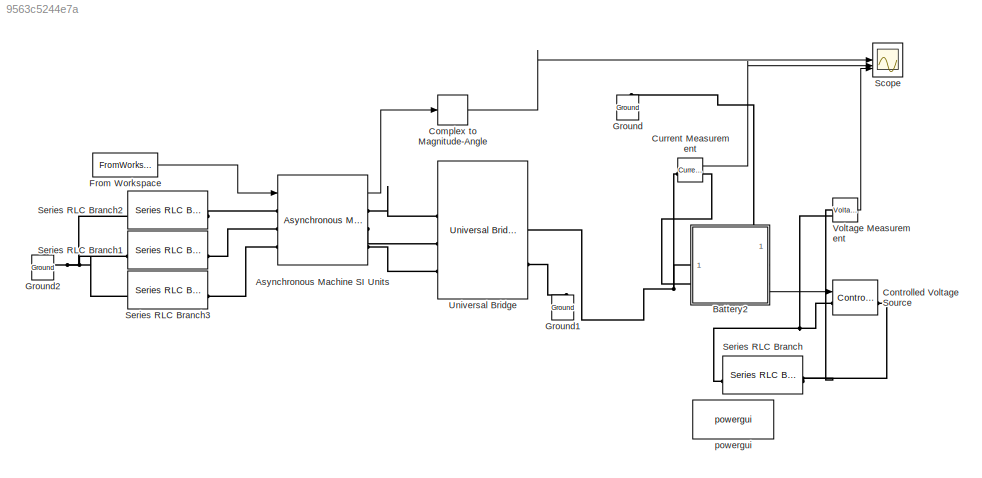
MODEL slx_9563c5244e7a
KIND model
CONFIG AbsTol = auto
CONFIG EnableMultiTasking = off
CONFIG FixedStep = auto
CONFIG MaxStep = auto
CONFIG MinStep = auto
CONFIG RelTol = 1e-3
CONFIG SampleTimeConstraint = Unconstrained
CONFIG SolverName = ode4
CONFIG StartTime = 0.0
CONFIG StopTime = 10.0
BLOCK [Reference] Asynchronous Machine SI Units  REF=spsAsynchronousMachineSIUnitsLib/Asynchronous Machine
SI Units
  LibrarySourceBlock = sps_lib/Electrical Machines/Asynchronous Machine\nSI Units
  SourceBlock = spsAsynchronousMachineSIUnitsLib/Asynchronous Machine\nSI Units
  SourceType = Asynchronous Machine
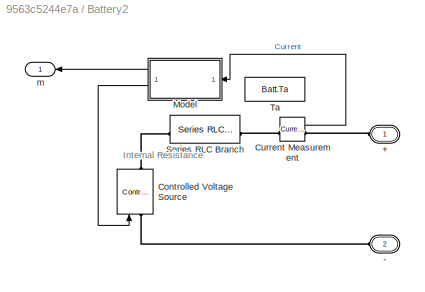
BLOCK [SubSystem] Battery2
  AncestorBlock = sps_lib/Sources/Battery
  CloseFcn = sps_rtmsupport('CloseFcn',gcbh);
  CopyFcn = sps_rtmsupport('CopyFcn',gcbh);
  DeleteFcn = sps_rtmsupport('DeleteFcn',gcbh);
  DialogController = POWERSYS.PowerSysDialog
  InitFcn = BatteryCback(gcb,1)
  LibrarySourceBlock = sps_lib/Sources/Battery
  LoadFcn = sps_rtmsupport('LoadFcn',gcbh); BatteryLoadFcn(gcb)
  ModelCloseFcn = sps_rtmsupport('ModelCloseFcn',gcbh);
  NameChangeFcn = sps_rtmsupport('NameChangeFcn',gcbh);
  NameLocation = top
  OpenFcn = sps_rtmsupport('OpenFcn',gcbh, [1,2,3,4,9,18]);
  PostSaveFcn = sps_rtmsupport('PostSaveFcn',gcbh);
  PreCopyFcn = sps_rtmsupport('PreCopyFcn',gcbh);
  PreDeleteFcn = sps_rtmsupport('PreDeleteFcn',gcbh);
  PreSaveFcn = sps_rtmsupport('PreSaveFcn',gcbh);
  StartFcn = sps_rtmsupport('StartFcn',gcbh);
  StopFcn = sps_rtmsupport('StopFcn',gcbh);
  UndoDeleteFcn = sps_rtmsupport('UndoDeleteFcn',gcbh);
BLOCK [PMIOPort] Battery2/+
  NameLocation = top
  Side = Left
  Tag = PMCPort
BLOCK [PMIOPort] Battery2/-
  NameLocation = top
  Port = 2
  Side = Left
  Tag = PMCPort
BLOCK [Reference] Battery2/Controlled Voltage Source  REF=spsControlledVoltageSourceLib/Controlled Voltage Source
  NameLocation = right
  SourceBlock = spsControlledVoltageSourceLib/Controlled Voltage Source
  SourceType = Controlled Voltage Source
BLOCK [Reference] Battery2/Current Measurement  REF=spsCurrentMeasurementLib/Current Measurement
  SourceBlock = spsCurrentMeasurementLib/Current Measurement
  SourceType = Current Measurement
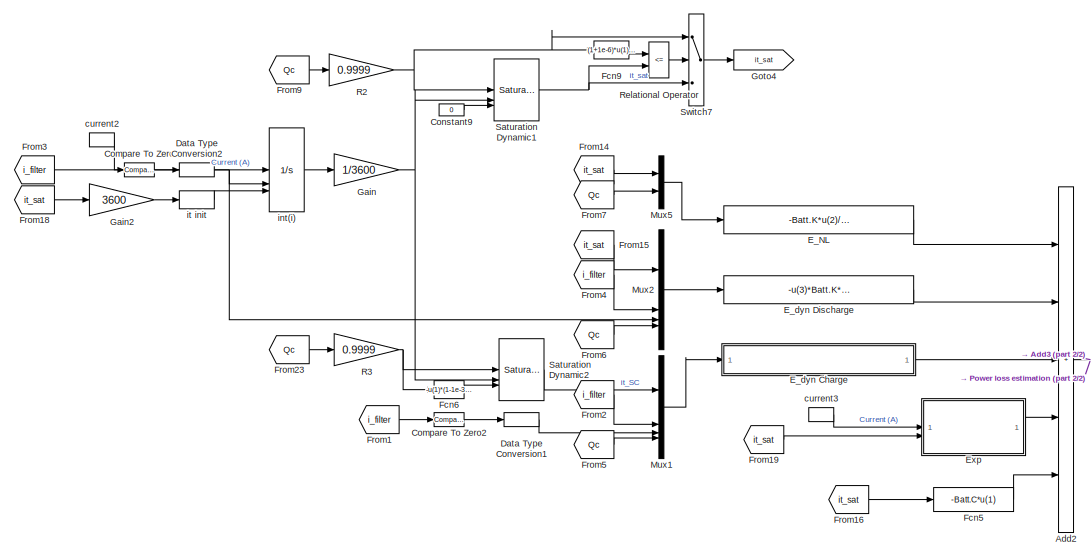
[diagram: Battery2/Model - part 1/2, left side, full height]
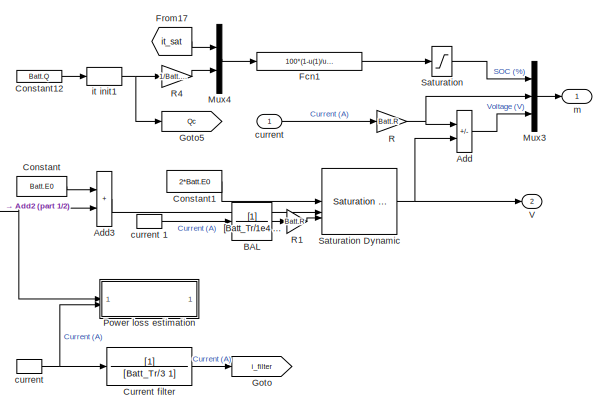
[diagram: Battery2/Model - part 2/2, middle right region]
BLOCK [SubSystem] Battery2/Model
  AncestorBlock = sps_lib/Sources/Battery/Model
  LibrarySourceBlock = sps_lib/Sources/Battery/Model
  NameLocation = top
BLOCK [Sum] Battery2/Model/Add
  IconShape = rectangular
  Inputs = -+
BLOCK [Sum] Battery2/Model/Add2
  IconShape = rectangular
  Inputs = +++++
BLOCK [Sum] Battery2/Model/Add3
  IconShape = rectangular
BLOCK [TransferFcn] Battery2/Model/BAL
  Denominator = [Batt_Tr/1e4 1]
BLOCK [Reference] Battery2/Model/Compare To Zero  REF=simulink/Logic and Bit
Operations/Compare
To Zero
  SourceBlock = simulink/Logic and Bit\nOperations/Compare\nTo Zero
  SourceType = Compare To Zero
BLOCK [Reference] Battery2/Model/Compare To Zero2  REF=simulink/Logic and Bit
Operations/Compare
To Zero
  SourceBlock = simulink/Logic and Bit\nOperations/Compare\nTo Zero
  SourceType = Compare To Zero
BLOCK [Constant] Battery2/Model/Constant
  NameLocation = top
  Value = Batt.E0
BLOCK [Constant] Battery2/Model/Constant1
  NameLocation = top
  Value = 2*Batt.E0
BLOCK [Constant] Battery2/Model/Constant12
  Value = Batt.Q
BLOCK [Constant] Battery2/Model/Constant9
  Value = 0
BLOCK [TransferFcn] Battery2/Model/Current filter
  Denominator = [Batt_Tr/3 1]
BLOCK [DataTypeConversion] Battery2/Model/Data Type Conversion1
  RndMeth = Floor
  SaturateOnIntegerOverflow = off
BLOCK [DataTypeConversion] Battery2/Model/Data Type Conversion2
  RndMeth = Floor
  SaturateOnIntegerOverflow = off
BLOCK [Fcn] Battery2/Model/E_NL
  Expr = -Batt.K*u(2)/(u(2)-u(1))*u(1)
  NameLocation = top
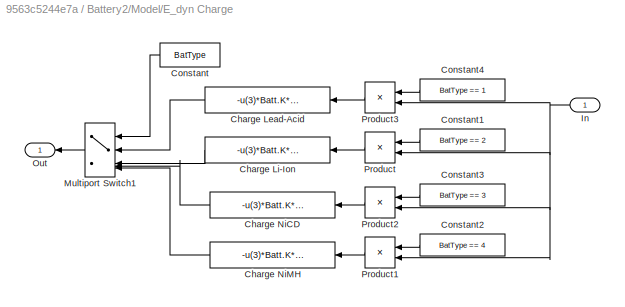
BLOCK [SubSystem] Battery2/Model/E_dyn Charge
  NameLocation = top
BLOCK [Fcn] Battery2/Model/E_dyn Charge/Charge Lead-Acid
  Expr = -u(3)*Batt.K*u(2)*(Batt.Q/(u(1)+Batt.Q*Batt.kc))
BLOCK [Fcn] Battery2/Model/E_dyn Charge/Charge Li-Ion
  Expr = -u(3)*Batt.K*u(2)*u(4)/(u(1)+u(4)*Batt.kc)
BLOCK [Fcn] Battery2/Model/E_dyn Charge/Charge NiCD
  Expr = -u(3)*Batt.K*u(2)*(Batt.Q/(abs(u(1))+Batt.Q*Batt.kc))
BLOCK [Fcn] Battery2/Model/E_dyn Charge/Charge NiMH
  Expr = -u(3)*Batt.K*u(2)*(Batt.Q/(abs(u(1))+Batt.Q*Batt.kc))
BLOCK [Constant] Battery2/Model/E_dyn Charge/Constant
  NameLocation = top
  Value = BatType
BLOCK [Constant] Battery2/Model/E_dyn Charge/Constant1
  NameLocation = top
  OutDataTypeStr = double
  Value = BatType == 2
BLOCK [Constant] Battery2/Model/E_dyn Charge/Constant2
  NameLocation = top
  OutDataTypeStr = double
  Value = BatType == 4
BLOCK [Constant] Battery2/Model/E_dyn Charge/Constant3
  NameLocation = top
  OutDataTypeStr = double
  Value = BatType == 3
BLOCK [Constant] Battery2/Model/E_dyn Charge/Constant4
  NameLocation = top
  OutDataTypeStr = double
  Value = BatType == 1
BLOCK [Inport] Battery2/Model/E_dyn Charge/In
BLOCK [MultiPortSwitch] Battery2/Model/E_dyn Charge/Multiport Switch1
  InputSameDT = off
  Inputs = 4
  NameLocation = top
  SaturateOnIntegerOverflow = off
BLOCK [Outport] Battery2/Model/E_dyn Charge/Out
  VectorParamsAs1DForOutWhenUnconnected = off
BLOCK [Product] Battery2/Model/E_dyn Charge/Product
  NameLocation = top
  RndMeth = Zero
BLOCK [Product] Battery2/Model/E_dyn Charge/Product1
  NameLocation = top
  RndMeth = Zero
BLOCK [Product] Battery2/Model/E_dyn Charge/Product2
  NameLocation = top
  RndMeth = Zero
BLOCK [Product] Battery2/Model/E_dyn Charge/Product3
  NameLocation = top
  RndMeth = Zero
BLOCK [Fcn] Battery2/Model/E_dyn Discharge
  Expr = -u(3)*Batt.K*u(2)*u(4)/(u(4)-u(1))
  NameLocation = top
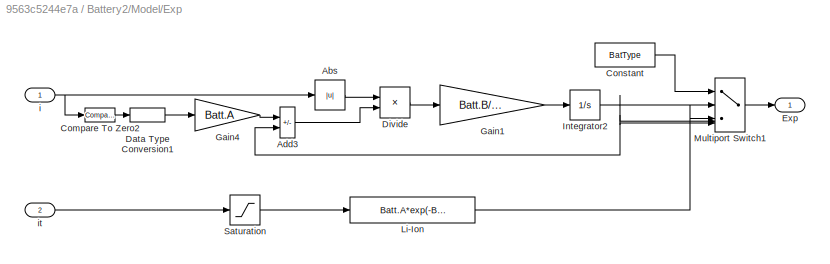
BLOCK [SubSystem] Battery2/Model/Exp
  NameLocation = top
BLOCK [Abs] Battery2/Model/Exp/Abs
  SaturateOnIntegerOverflow = off
BLOCK [Sum] Battery2/Model/Exp/Add3
  IconShape = rectangular
  Inputs = +-
BLOCK [Reference] Battery2/Model/Exp/Compare To Zero2  REF=simulink/Logic and Bit
Operations/Compare
To Zero
  SourceBlock = simulink/Logic and Bit\nOperations/Compare\nTo Zero
  SourceType = Compare To Zero
BLOCK [Constant] Battery2/Model/Exp/Constant
  Value = BatType
BLOCK [DataTypeConversion] Battery2/Model/Exp/Data Type Conversion1
  RndMeth = Floor
  SaturateOnIntegerOverflow = off
BLOCK [Product] Battery2/Model/Exp/Divide
  Inputs = **
BLOCK [Outport] Battery2/Model/Exp/Exp
  NameLocation = top
  VectorParamsAs1DForOutWhenUnconnected = off
BLOCK [Gain] Battery2/Model/Exp/Gain1
  Gain = Batt.B/3600
  NameLocation = top
BLOCK [Gain] Battery2/Model/Exp/Gain4
  Gain = Batt.A
  NameLocation = top
BLOCK [Integrator] Battery2/Model/Exp/Integrator2
  InitialCondition = Batt.A*exp(-Batt.B*(1-SOC/100)*Batt.Q)
BLOCK [Fcn] Battery2/Model/Exp/Li-Ion
  Expr = Batt.A*exp(-Batt.B*u(1))
  NameLocation = top
BLOCK [MultiPortSwitch] Battery2/Model/Exp/Multiport Switch1
  InputSameDT = off
  Inputs = 4
  SaturateOnIntegerOverflow = off
BLOCK [Saturate] Battery2/Model/Exp/Saturation
  LowerLimit = -inf
  UpperLimit = Batt.Qmax*(1/Batt.lambda)
BLOCK [Inport] Battery2/Model/Exp/i
BLOCK [Inport] Battery2/Model/Exp/it
  Port = 2
BLOCK [Fcn] Battery2/Model/Fcn1
  Expr = 100*(1-u(1)/u(2))
BLOCK [Fcn] Battery2/Model/Fcn5
  Expr = -Batt.C*u(1)
BLOCK [Fcn] Battery2/Model/Fcn6
  Expr = -u(1)*(1-1e-3)*Batt.kcsat*0.9999
BLOCK [Fcn] Battery2/Model/Fcn9
  Expr = (1+1e-6)*u(1)*(1/Batt.lambda)/0.9999
BLOCK [From] Battery2/Model/From1
  GotoTag = i_filter
BLOCK [From] Battery2/Model/From14
  GotoTag = it_sat
BLOCK [From] Battery2/Model/From15
  GotoTag = it_sat
BLOCK [From] Battery2/Model/From16
  GotoTag = it_sat
BLOCK [From] Battery2/Model/From17
  GotoTag = it_sat
BLOCK [From] Battery2/Model/From18
  GotoTag = it_sat
BLOCK [From] Battery2/Model/From19
  GotoTag = it_sat
  NameLocation = top
BLOCK [From] Battery2/Model/From2
  GotoTag = i_filter
BLOCK [From] Battery2/Model/From23
  GotoTag = Qc
BLOCK [From] Battery2/Model/From3
  GotoTag = i_filter
BLOCK [From] Battery2/Model/From4
  GotoTag = i_filter
BLOCK [From] Battery2/Model/From5
  GotoTag = Qc
BLOCK [From] Battery2/Model/From6
  GotoTag = Qc
BLOCK [From] Battery2/Model/From7
  GotoTag = Qc
BLOCK [From] Battery2/Model/From9
  GotoTag = Qc
BLOCK [Gain] Battery2/Model/Gain
  Gain = 1/3600
BLOCK [Gain] Battery2/Model/Gain2
  Gain = 3600
  NameLocation = top
BLOCK [Goto] Battery2/Model/Goto
  GotoTag = i_filter
BLOCK [Goto] Battery2/Model/Goto4
  GotoTag = it_sat
BLOCK [Goto] Battery2/Model/Goto5
  GotoTag = Qc
BLOCK [Mux] Battery2/Model/Mux1
  DisplayOption = bar
BLOCK [Mux] Battery2/Model/Mux2
  DisplayOption = bar
BLOCK [Mux] Battery2/Model/Mux3
  DisplayOption = bar
  Inputs = 3
BLOCK [Mux] Battery2/Model/Mux4
  DisplayOption = bar
  Inputs = 2
BLOCK [Mux] Battery2/Model/Mux5
  DisplayOption = bar
  Inputs = 2
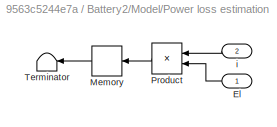
BLOCK [SubSystem] Battery2/Model/Power loss estimation
BLOCK [Inport] Battery2/Model/Power loss estimation/El
BLOCK [Memory] Battery2/Model/Power loss estimation/Memory
  NameLocation = top
BLOCK [Product] Battery2/Model/Power loss estimation/Product
  NameLocation = top
BLOCK [Terminator] Battery2/Model/Power loss estimation/Terminator
  NameLocation = top
BLOCK [Inport] Battery2/Model/Power loss estimation/i
  Port = 2
BLOCK [Gain] Battery2/Model/R
  Gain = Batt.R
  NameLocation = top
BLOCK [Gain] Battery2/Model/R1
  Gain = Batt.R
  NameLocation = top
BLOCK [Gain] Battery2/Model/R2
  Gain = 0.9999
  NameLocation = top
BLOCK [Gain] Battery2/Model/R3
  Gain = 0.9999
  NameLocation = top
BLOCK [Gain] Battery2/Model/R4
  Gain = 1/Batt.lambda
  NameLocation = top
BLOCK [RelationalOperator] Battery2/Model/Relational Operator
  InputSameDT = off
  Operator = <=
  RndMeth = Simplest
BLOCK [Saturate] Battery2/Model/Saturation
  LowerLimit = 0
  UpperLimit = 100
BLOCK [Reference] Battery2/Model/Saturation Dynamic  REF=simulink/Discontinuities/Saturation
Dynamic
  SourceBlock = simulink/Discontinuities/Saturation\nDynamic
  SourceType = Saturation Dynamic
BLOCK [Reference] Battery2/Model/Saturation Dynamic1  REF=simulink/Discontinuities/Saturation
Dynamic
  SourceBlock = simulink/Discontinuities/Saturation\nDynamic
  SourceType = Saturation Dynamic
BLOCK [Reference] Battery2/Model/Saturation Dynamic2  REF=simulink/Discontinuities/Saturation
Dynamic
  SourceBlock = simulink/Discontinuities/Saturation\nDynamic
  SourceType = Saturation Dynamic
BLOCK [Switch] Battery2/Model/Switch7
  Criteria = u2 > Threshold
  InputSameDT = off
  SaturateOnIntegerOverflow = off
BLOCK [Outport] Battery2/Model/V
  Port = 2
  VectorParamsAs1DForOutWhenUnconnected = off
BLOCK [Inport] Battery2/Model/current
BLOCK [InportShadow] Battery2/Model/current 
  NameLocation = top
BLOCK [InportShadow] Battery2/Model/current 1
  NameLocation = top
BLOCK [InportShadow] Battery2/Model/current2
  NameLocation = top
BLOCK [InportShadow] Battery2/Model/current3
BLOCK [Integrator] Battery2/Model/int(i)
  ExternalReset = rising
  InitialCondition = (1-SOC/100)*Q*3600
  InitialConditionSource = external
  LimitOutput = on
  UpperSaturationLimit = Batt.Qmax*3600
BLOCK [Memory] Battery2/Model/it init
  InitialCondition = (1-SOC/100)*Batt.Q*(1/Batt.lambda)*3600
BLOCK [Memory] Battery2/Model/it init1
  InitialCondition = Batt.Q
  NameLocation = top
BLOCK [Outport] Battery2/Model/m
  PortDimensions = 3
  VectorParamsAs1DForOutWhenUnconnected = off
BLOCK [Reference] Battery2/Series RLC Branch  REF=spsSeriesRLCBranchLib/Series RLC Branch
  SourceBlock = spsSeriesRLCBranchLib/Series RLC Branch
  SourceType = Series RLC Branch
BLOCK [Constant] Battery2/Ta
  Value = Batt.Ta
BLOCK [Outport] Battery2/m
  NameLocation = top
  VectorParamsAs1DForOutWhenUnconnected = off
BLOCK [ComplexToMagnitudeAngle] Complex to Magnitude-Angle
  Output = Magnitude
BLOCK [Reference] Controlled Voltage Source  REF=spsControlledVoltageSourceLib/Controlled Voltage Source
  LibrarySourceBlock = sps_lib/Sources/Controlled Voltage Source
  NameLocation = left
  SourceBlock = spsControlledVoltageSourceLib/Controlled Voltage Source
  SourceType = Controlled Voltage Source
BLOCK [Reference] Current Measurement  REF=spsCurrentMeasurementLib/Current Measurement
  LibrarySourceBlock = sps_lib/Sensors and Measurements/Current Measurement
  SourceBlock = spsCurrentMeasurementLib/Current Measurement
  SourceType = Current Measurement
  UserDataPersistent = on
BLOCK [FromWorkspace] From Workspace
  VariableName = fixed_data
BLOCK [Reference] Ground  REF=spsGroundLib/Ground
  LibrarySourceBlock = sps_lib/Utilities/Ground
  NameLocation = right
  SourceBlock = spsGroundLib/Ground
  SourceType = Ground
BLOCK [Reference] Ground1  REF=spsGroundLib/Ground
  LibrarySourceBlock = sps_lib/Utilities/Ground
  NameLocation = right
  SourceBlock = spsGroundLib/Ground
  SourceType = Ground
BLOCK [Reference] Ground2  REF=spsGroundLib/Ground
  LibrarySourceBlock = sps_lib/Utilities/Ground
  NameLocation = right
  SourceBlock = spsGroundLib/Ground
  SourceType = Ground
BLOCK [Scope] Scope
  Floating = off
  NumInputPorts = 3
  ScopeSpecificationString = Simulink.scopes.TimeScopeBlockCfg('CurrentConfiguration', extmgr.ConfigurationSet(extmgr.Configuration('Core','General UI',true),extmgr.Configuration('Core','Source UI',true),extmgr.Configuration('Sources','WiredSimulink',true),extmgr.Configuration('Visuals','Time Domain',true),extmgr.Configuration('Tools','Plot Navigation',true),extmgr.Configuration('Tools','Measurements',true)),'Version','2024a'...<+1ch>
BLOCK [Reference] Series RLC Branch  REF=spsSeriesRLCBranchLib/Series RLC Branch
  LibrarySourceBlock = sps_lib/Passives/Series RLC Branch
  NameLocation = top
  SourceBlock = spsSeriesRLCBranchLib/Series RLC Branch
  SourceType = Series RLC Branch
BLOCK [Reference] Series RLC Branch1  REF=spsSeriesRLCBranchLib/Series RLC Branch
  LibrarySourceBlock = sps_lib/Passives/Series RLC Branch
  SourceBlock = spsSeriesRLCBranchLib/Series RLC Branch
  SourceType = Series RLC Branch
BLOCK [Reference] Series RLC Branch2  REF=spsSeriesRLCBranchLib/Series RLC Branch
  LibrarySourceBlock = sps_lib/Passives/Series RLC Branch
  SourceBlock = spsSeriesRLCBranchLib/Series RLC Branch
  SourceType = Series RLC Branch
BLOCK [Reference] Series RLC Branch3  REF=spsSeriesRLCBranchLib/Series RLC Branch
  LibrarySourceBlock = sps_lib/Passives/Series RLC Branch
  SourceBlock = spsSeriesRLCBranchLib/Series RLC Branch
  SourceType = Series RLC Branch
BLOCK [Reference] Universal Bridge  REF=spsUniversalBridgeLib/Universal Bridge
  LibrarySourceBlock = sps_lib/Power Electronics/Universal Bridge
  SourceBlock = spsUniversalBridgeLib/Universal Bridge
  SourceType = Universal Bridge
BLOCK [Reference] Voltage Measurement  REF=spsVoltageMeasurementLib/Voltage Measurement
  LibrarySourceBlock = sps_lib/Sensors and Measurements/Voltage Measurement
  SourceBlock = spsVoltageMeasurementLib/Voltage Measurement
  SourceType = Voltage Measurement
  UserDataPersistent = on
BLOCK [Reference] powergui  REF=sps_lib/powergui
  LibrarySourceBlock = sps_lib/powergui
  Priority = 1
  SourceBlock = sps_lib/powergui
  SourceType = PSB option menu block
ANNOTATION Battery2: Internal Resistance
LINE Asynchronous Machine SI Units:1 -> Complex to Magnitude-Angle:1
LINE Battery2:1 -> Controlled Voltage Source:1
LINE Complex to Magnitude-Angle:1 -> Scope:1
LINE Current Measurement:1 -> Scope:2
LINE From Workspace:1 -> Asynchronous Machine SI Units:1
LINE Voltage Measurement:1 -> Scope:3
PLINE Asynchronous Machine SI Units:LConn1 -- Series RLC Branch2:RConn1
PLINE Asynchronous Machine SI Units:LConn2 -- Series RLC Branch1:RConn1
PLINE Asynchronous Machine SI Units:LConn3 -- Series RLC Branch3:RConn1
PLINE Asynchronous Machine SI Units:RConn1 -- Universal Bridge:LConn1
PLINE Asynchronous Machine SI Units:RConn2 -- Universal Bridge:LConn2
PLINE Asynchronous Machine SI Units:RConn3 -- Universal Bridge:LConn3
PNET net1: Battery2:LConn1 -- Current Measurement:LConn1 -- Universal Bridge:RConn1
PNET net2: Battery2:LConn2 -- Current Measurement:RConn1 -- Ground:LConn1
PNET net3: Controlled Voltage Source:LConn1 -- Series RLC Branch:RConn1 -- Voltage Measurement:LConn2
PNET net4: Controlled Voltage Source:RConn1 -- Series RLC Branch:LConn1 -- Voltage Measurement:LConn1
PLINE Ground1:LConn1 -- Universal Bridge:RConn2
PNET net5: Ground2:LConn1 -- Series RLC Branch1:LConn1 -- Series RLC Branch2:LConn1 -- Series RLC Branch3:LConn1
note: PNET lines group multi-terminal physical nets as a canonical sorted terminal list (undirected conserving connections); 2-terminal nets keep the pairwise PLINE form
